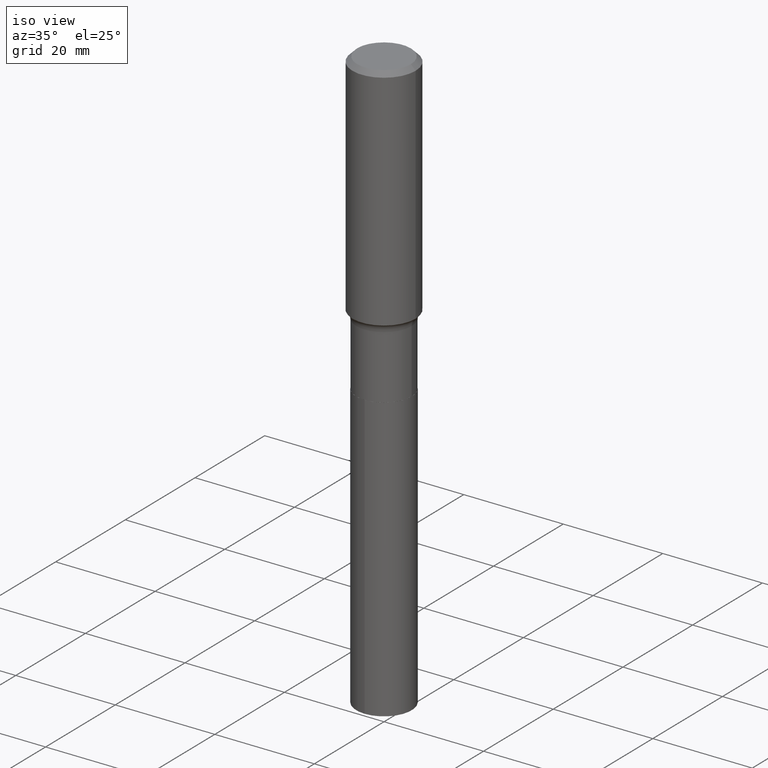
[diagram: clean part render]
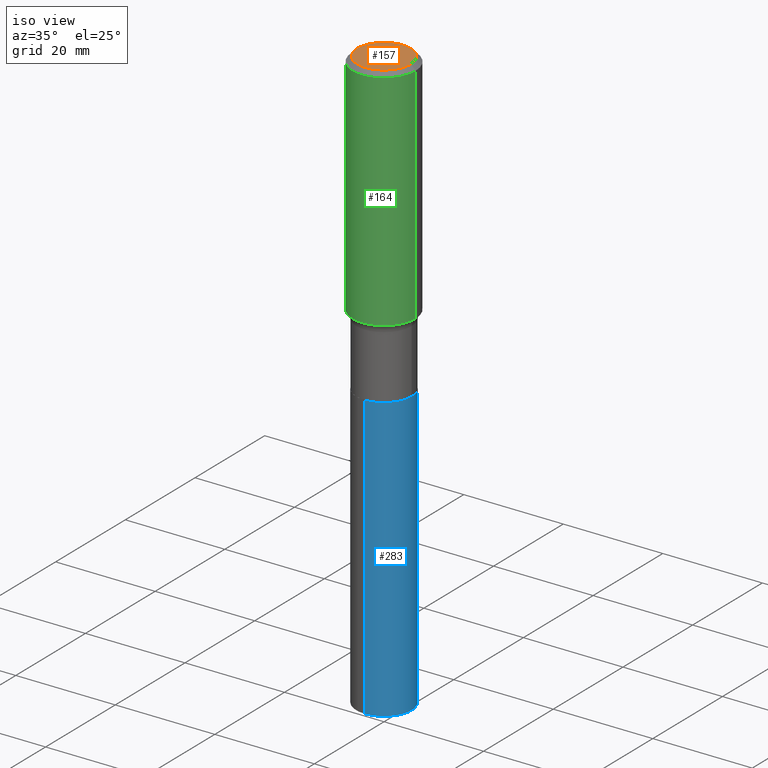
[diagram: same view with three faces highlighted in distinct colors, each labeled with its STEP entity id]
A machine part, iso view with three faces highlighted in distinct colors.
Their STEP definitions:

[orange] entity #157 — the highlighted planar face has unit normal (0, -0, -1).
#17 = CIRCLE ( 'NONE', #80, 0.2124999999999999944 ) ;
#26 = FACE_OUTER_BOUND ( 'NONE', #237, .T. ) ;
#44 = DIRECTION ( 'NONE',  ( -2.445468806185136597E-29, 3.491481338843145583E-15, 1.000000000000000000 ) ) ;
#45 = ORIENTED_EDGE ( 'NONE', *, *, #425, .T. ) ;
#61 = CARTESIAN_POINT ( 'NONE',  ( 0.2124999999999999944, -1.651955437087975937E-15, 6.505936120481282700E-18 ) ) ;
#80 = AXIS2_PLACEMENT_3D ( 'NONE', #480, #90, #367 ) ;
#87 = AXIS2_PLACEMENT_3D ( 'NONE', #472, #44, #394 ) ;
#90 = DIRECTION ( 'NONE',  ( -2.445468806185136597E-29, 3.491481338843145583E-15, 1.000000000000000000 ) ) ;
#97 = CARTESIAN_POINT ( 'NONE',  ( -7.955031918821654702E-47, 1.135767727816384474E-32, 3.252968060235159383E-18 ) ) ;
#112 = EDGE_CURVE ( 'NONE', #226, #263, #17, .T. ) ;
#140 = DIRECTION ( 'NONE',  ( 2.438088387897960049E-29, -3.491481338843145188E-15, -1.000000000000000000 ) ) ;
#157 = ADVANCED_FACE ( 'NONE', ( #26 ), #397, .F. ) ;
#226 = VERTEX_POINT ( 'NONE', #448 ) ;
#237 = EDGE_LOOP ( 'NONE', ( #393, #45 ) ) ;
#262 = AXIS2_PLACEMENT_3D ( 'NONE', #97, #140, #371 ) ;
#263 = VERTEX_POINT ( 'NONE', #61 ) ;
#264 = CIRCLE ( 'NONE', #87, 0.2124999999999999944 ) ;
#367 = DIRECTION ( 'NONE',  ( 1.000000000000000000, -6.982962677686266711E-15, 4.876376119033268190E-29 ) ) ;
#371 = DIRECTION ( 'NONE',  ( -1.000000000000000000, 6.982962677686265922E-15, -4.876176775795935793E-29 ) ) ;
#393 = ORIENTED_EDGE ( 'NONE', *, *, #112, .T. ) ;
#394 = DIRECTION ( 'NONE',  ( 1.000000000000000000, -6.982962677686266711E-15, 4.876376119033268190E-29 ) ) ;
#397 = PLANE ( 'NONE',  #262 ) ;
#425 = EDGE_CURVE ( 'NONE', #263, #226, #264, .T. ) ;
#448 = CARTESIAN_POINT ( 'NONE',  ( -0.2124999999999999944, 1.549344844111639638E-15, 6.505936120459713055E-18 ) ) ;
#472 = CARTESIAN_POINT ( 'NONE',  ( -1.591006383764330940E-46, 2.271535455632768948E-32, 6.505936120470318766E-18 ) ) ;
#480 = CARTESIAN_POINT ( 'NONE',  ( -1.591006383764330940E-46, 2.271535455632768948E-32, 6.505936120470318766E-18 ) ) ;

[blue] entity #283 — the highlighted cylindrical surface (edge-blend (fillet) strip) has radius 5.5562 mm, axis along (-0, 0, 1).
#1 = VERTEX_POINT ( 'NONE', #12 ) ;
#10 = AXIS2_PLACEMENT_3D ( 'NONE', #103, #63, #215 ) ;
#12 = CARTESIAN_POINT ( 'NONE',  ( -1.527523085743812467E-15, -0.2187500000000082989, -2.374999999999999556 ) ) ;
#32 = CARTESIAN_POINT ( 'NONE',  ( 1.554312234475331569E-15, 0.2187499999999838463, -4.618528389932723854 ) ) ;
#55 = CIRCLE ( 'NONE', #280, 0.2187500000000000000 ) ;
#56 = VERTEX_POINT ( 'NONE', #430 ) ;
#63 = DIRECTION ( 'NONE',  ( -2.445327369194011898E-29, 3.491683884664529466E-15, 1.000000000000000000 ) ) ;
#65 = CYLINDRICAL_SURFACE ( 'NONE', #10, 0.2187500000000000000 ) ;
#89 = EDGE_CURVE ( 'NONE', #301, #386, #443, .T. ) ;
#95 = EDGE_CURVE ( 'NONE', #301, #1, #169, .T. ) ;
#103 = CARTESIAN_POINT ( 'NONE',  ( 5.807988414689700538E-29, -8.292268179752471696E-15, -2.375000000000000000 ) ) ;
#114 = DIRECTION ( 'NONE',  ( -2.445327369194012178E-29, 3.491683884664529466E-15, 1.000000000000000000 ) ) ;
#119 = ORIENTED_EDGE ( 'NONE', *, *, #277, .F. ) ;
#144 = VECTOR ( 'NONE', #476, 39.37007874015748143 ) ;
#169 = LINE ( 'NONE', #315, #144 ) ;
#192 = EDGE_LOOP ( 'NONE', ( #379, #235, #119, #469 ) ) ;
#214 = CARTESIAN_POINT ( 'NONE',  ( 5.807988414689700538E-29, -8.292268179752471696E-15, -2.375000000000000000 ) ) ;
#215 = DIRECTION ( 'NONE',  ( -6.982962677686265133E-15, -1.000000000000000000, 3.746534391310989557E-15 ) ) ;
#235 = ORIENTED_EDGE ( 'NONE', *, *, #392, .T. ) ;
#277 = EDGE_CURVE ( 'NONE', #1, #56, #55, .T. ) ;
#280 = AXIS2_PLACEMENT_3D ( 'NONE', #214, #481, #405 ) ;
#283 = ADVANCED_FACE ( 'NONE', ( #291 ), #65, .T. ) ;
#291 = FACE_OUTER_BOUND ( 'NONE', #192, .T. ) ;
#294 = AXIS2_PLACEMENT_3D ( 'NONE', #437, #349, #474 ) ;
#299 = CARTESIAN_POINT ( 'NONE',  ( 1.554312234475276743E-15, 0.2187499999999917011, -2.375000000000000888 ) ) ;
#301 = VERTEX_POINT ( 'NONE', #334 ) ;
#315 = CARTESIAN_POINT ( 'NONE',  ( -1.527523085743812467E-15, -0.2187500000000082989, -2.374999999999999556 ) ) ;
#334 = CARTESIAN_POINT ( 'NONE',  ( -1.527523085743757444E-15, -0.2187500000000160705, -4.618528389932722966 ) ) ;
#349 = DIRECTION ( 'NONE',  ( -2.445327369194011898E-29, 3.491683884664529466E-15, 1.000000000000000000 ) ) ;
#379 = ORIENTED_EDGE ( 'NONE', *, *, #89, .T. ) ;
#386 = VERTEX_POINT ( 'NONE', #32 ) ;
#392 = EDGE_CURVE ( 'NONE', #386, #56, #408, .T. ) ;
#405 = DIRECTION ( 'NONE',  ( -6.982962677686265133E-15, -1.000000000000000000, 3.746534391310989557E-15 ) ) ;
#408 = LINE ( 'NONE', #299, #411 ) ;
#411 = VECTOR ( 'NONE', #114, 39.37007874015748143 ) ;
#430 = CARTESIAN_POINT ( 'NONE',  ( 1.554312234475331964E-15, 0.2187499999999917011, -2.375000000000000888 ) ) ;
#437 = CARTESIAN_POINT ( 'NONE',  ( 1.129414979015596135E-28, -1.612596010366791747E-14, -4.618528389932722966 ) ) ;
#443 = CIRCLE ( 'NONE', #294, 0.2187500000000000000 ) ;
#469 = ORIENTED_EDGE ( 'NONE', *, *, #95, .F. ) ;
#474 = DIRECTION ( 'NONE',  ( -6.982962677686265133E-15, -1.000000000000000000, 2.497689594207326371E-15 ) ) ;
#476 = DIRECTION ( 'NONE',  ( -2.445327369194012178E-29, 3.491683884664529466E-15, 1.000000000000000000 ) ) ;
#481 = DIRECTION ( 'NONE',  ( -2.445327369194011898E-29, 3.491683884664529466E-15, 1.000000000000000000 ) ) ;

[green] entity #164 — the highlighted cylindrical surface (partial cylindrical patch) has radius 6.35 mm, axis along (-0, 0, 1).
#54 = CYLINDRICAL_SURFACE ( 'NONE', #72, 0.2500000000000001110 ) ;
#72 = AXIS2_PLACEMENT_3D ( 'NONE', #331, #134, #446 ) ;
#77 = ORIENTED_EDGE ( 'NONE', *, *, #345, .T. ) ;
#83 = DIRECTION ( 'NONE',  ( 1.000000000000000000, -6.982962677686266711E-15, 0.000000000000000000 ) ) ;
#131 = VERTEX_POINT ( 'NONE', #256 ) ;
#134 = DIRECTION ( 'NONE',  ( -2.445468806185136597E-29, 3.491481338843145583E-15, 1.000000000000000000 ) ) ;
#135 = VERTEX_POINT ( 'NONE', #439 ) ;
#146 = AXIS2_PLACEMENT_3D ( 'NONE', #353, #279, #83 ) ;
#164 = ADVANCED_FACE ( 'NONE', ( #180 ), #54, .T. ) ;
#166 = DIRECTION ( 'NONE',  ( -2.445468806185136597E-29, 3.491481338843145583E-15, 1.000000000000000000 ) ) ;
#180 = FACE_OUTER_BOUND ( 'NONE', #362, .T. ) ;
#188 = LINE ( 'NONE', #227, #482 ) ;
#202 = CIRCLE ( 'NONE', #146, 0.2500000000000000000 ) ;
#223 = DIRECTION ( 'NONE',  ( -2.445468806185136877E-29, 3.491481338843145188E-15, 1.000000000000000000 ) ) ;
#225 = DIRECTION ( 'NONE',  ( -2.445468806185136877E-29, 3.491481338843145188E-15, 1.000000000000000000 ) ) ;
#227 = CARTESIAN_POINT ( 'NONE',  ( 0.2500000000000001110, -1.745740669421567467E-15, 1.219044193948984509E-29 ) ) ;
#230 = DIRECTION ( 'NONE',  ( 1.000000000000000000, -6.982962677686268288E-15, 0.000000000000000000 ) ) ;
#240 = VECTOR ( 'NONE', #225, 39.37007874015748143 ) ;
#241 = VERTEX_POINT ( 'NONE', #257 ) ;
#256 = CARTESIAN_POINT ( 'NONE',  ( 0.2500000000000000000, -1.876671219628185362E-15, -0.03750000000000024841 ) ) ;
#257 = CARTESIAN_POINT ( 'NONE',  ( 0.2500000000000001665, -8.063445330726071283E-15, -1.809462531281289310 ) ) ;
#265 = LINE ( 'NONE', #372, #240 ) ;
#273 = AXIS2_PLACEMENT_3D ( 'NONE', #465, #166, #230 ) ;
#279 = DIRECTION ( 'NONE',  ( -2.445468806185136597E-29, 3.491481338843145583E-15, 1.000000000000000000 ) ) ;
#307 = ORIENTED_EDGE ( 'NONE', *, *, #470, .F. ) ;
#331 = CARTESIAN_POINT ( 'NONE',  ( 0.000000000000000000, 0.000000000000000000, 0.000000000000000000 ) ) ;
#345 = EDGE_CURVE ( 'NONE', #241, #131, #188, .T. ) ;
#353 = CARTESIAN_POINT ( 'NONE',  ( 9.170508023194322494E-31, -1.309305502066188320E-16, -0.03750000000000024841 ) ) ;
#361 = CIRCLE ( 'NONE', #273, 0.2500000000000002220 ) ;
#362 = EDGE_LOOP ( 'NONE', ( #491, #401, #77, #307 ) ) ;
#372 = CARTESIAN_POINT ( 'NONE',  ( -0.2500000000000001110, 1.776356839400251254E-15, -1.229733772563727006E-29 ) ) ;
#373 = CARTESIAN_POINT ( 'NONE',  ( -0.2500000000000000000, -1.447960766355309800E-15, -0.03750000000000024841 ) ) ;
#381 = VERTEX_POINT ( 'NONE', #373 ) ;
#401 = ORIENTED_EDGE ( 'NONE', *, *, #461, .T. ) ;
#402 = EDGE_CURVE ( 'NONE', #135, #381, #265, .T. ) ;
#439 = CARTESIAN_POINT ( 'NONE',  ( -0.2500000000000001665, -4.541347821904251775E-15, -1.809462531281289310 ) ) ;
#446 = DIRECTION ( 'NONE',  ( 1.000000000000000000, -6.982962677686266711E-15, 4.876176775795935793E-29 ) ) ;
#461 = EDGE_CURVE ( 'NONE', #135, #241, #361, .T. ) ;
#465 = CARTESIAN_POINT ( 'NONE',  ( 4.424984176209189832E-29, -6.317704661304503817E-15, -1.809462531281289310 ) ) ;
#470 = EDGE_CURVE ( 'NONE', #381, #131, #202, .T. ) ;
#482 = VECTOR ( 'NONE', #223, 39.37007874015748143 ) ;
#491 = ORIENTED_EDGE ( 'NONE', *, *, #402, .F. ) ;